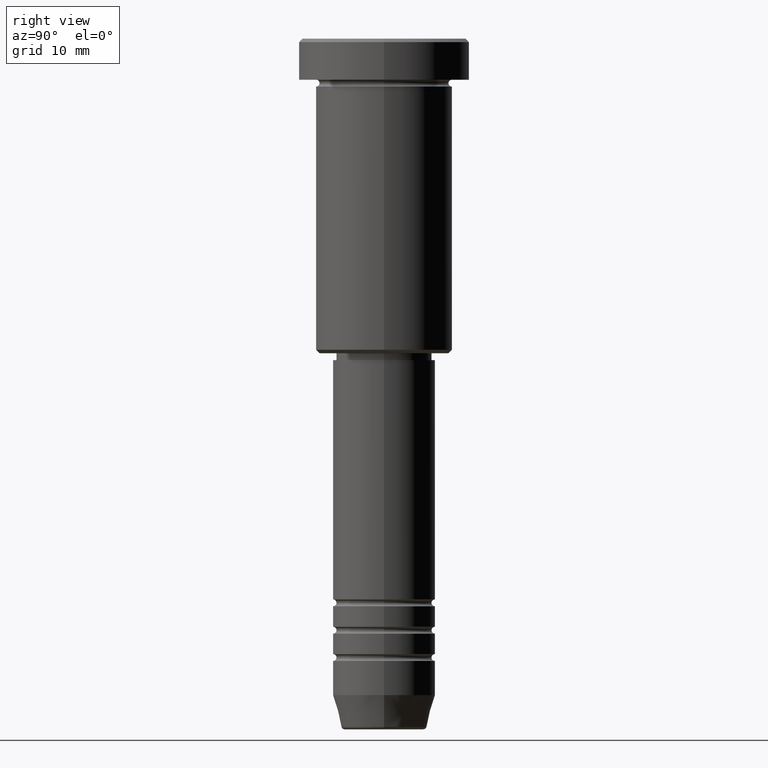
[diagram: clean part render]
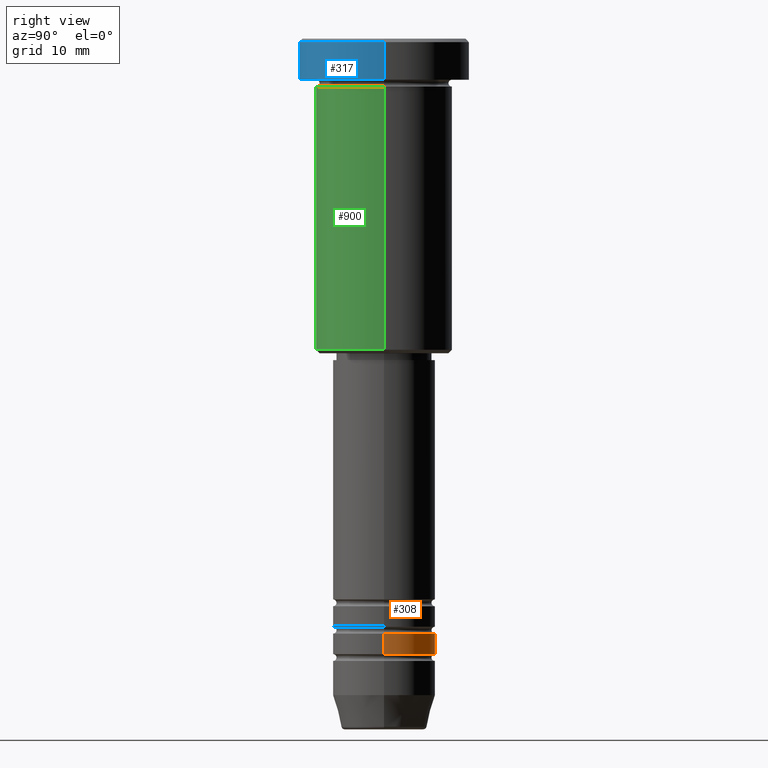
[diagram: same view with three faces highlighted in distinct colors, each labeled with its STEP entity id]
A machine part, right view with three faces highlighted in distinct colors.
Their STEP definitions:

[orange] entity #308 — the highlighted cylindrical surface (partial cylindrical patch) has radius 7.5 mm, axis along (-0, -0, 1).
#20 = VERTEX_POINT ( 'NONE', #613 ) ;
#71 = DIRECTION ( 'NONE',  ( -0.000000000000000000, -0.000000000000000000, 1.000000000000000000 ) ) ;
#140 = DIRECTION ( 'NONE',  ( -0.000000000000000000, -0.000000000000000000, 1.000000000000000000 ) ) ;
#211 = CARTESIAN_POINT ( 'NONE',  ( 7.500000000000000000, 0.000000000000000000, 0.000000000000000000 ) ) ;
#235 = LINE ( 'NONE', #211, #992 ) ;
#238 = EDGE_CURVE ( 'NONE', #20, #270, #235, .T. ) ;
#248 = EDGE_CURVE ( 'NONE', #20, #654, #1096, .T. ) ;
#270 = VERTEX_POINT ( 'NONE', #816 ) ;
#308 = ADVANCED_FACE ( 'NONE', ( #517 ), #802, .T. ) ;
#345 = LINE ( 'NONE', #906, #729 ) ;
#424 = ORIENTED_EDGE ( 'NONE', *, *, #1110, .T. ) ;
#433 = CARTESIAN_POINT ( 'NONE',  ( -7.500000000000001776, 9.184850993605149917E-16, -89.99999999999988631 ) ) ;
#440 = DIRECTION ( 'NONE',  ( -0.000000000000000000, -0.000000000000000000, 1.000000000000000000 ) ) ;
#511 = DIRECTION ( 'NONE',  ( 1.000000000000000000, 0.000000000000000000, 0.000000000000000000 ) ) ;
#517 = FACE_OUTER_BOUND ( 'NONE', #644, .T. ) ;
#530 = DIRECTION ( 'NONE',  ( 1.000000000000000000, 0.000000000000000000, 0.000000000000000000 ) ) ;
#604 = DIRECTION ( 'NONE',  ( -0.000000000000000000, -0.000000000000000000, 1.000000000000000000 ) ) ;
#612 = CIRCLE ( 'NONE', #653, 7.500000000000000000 ) ;
#613 = CARTESIAN_POINT ( 'NONE',  ( 7.500000000000000888, 0.000000000000000000, -89.99999999999988631 ) ) ;
#620 = DIRECTION ( 'NONE',  ( -0.000000000000000000, -0.000000000000000000, 1.000000000000000000 ) ) ;
#644 = EDGE_LOOP ( 'NONE', ( #1150, #424, #882, #840 ) ) ;
#653 = AXIS2_PLACEMENT_3D ( 'NONE', #994, #71, #1181 ) ;
#654 = VERTEX_POINT ( 'NONE', #433 ) ;
#729 = VECTOR ( 'NONE', #440, 1000.000000000000000 ) ;
#767 = AXIS2_PLACEMENT_3D ( 'NONE', #968, #140, #511 ) ;
#802 = CYLINDRICAL_SURFACE ( 'NONE', #898, 7.500000000000000000 ) ;
#816 = CARTESIAN_POINT ( 'NONE',  ( 7.500000000000000000, 0.000000000000000000, -86.99999999999988631 ) ) ;
#840 = ORIENTED_EDGE ( 'NONE', *, *, #238, .F. ) ;
#882 = ORIENTED_EDGE ( 'NONE', *, *, #1167, .F. ) ;
#898 = AXIS2_PLACEMENT_3D ( 'NONE', #1153, #620, #530 ) ;
#906 = CARTESIAN_POINT ( 'NONE',  ( -7.500000000000000000, 9.184850993605147944E-16, 0.000000000000000000 ) ) ;
#968 = CARTESIAN_POINT ( 'NONE',  ( 0.000000000000000000, 0.000000000000000000, -89.99999999999988631 ) ) ;
#983 = VERTEX_POINT ( 'NONE', #1148 ) ;
#992 = VECTOR ( 'NONE', #604, 1000.000000000000000 ) ;
#994 = CARTESIAN_POINT ( 'NONE',  ( 0.000000000000000000, 0.000000000000000000, -86.99999999999988631 ) ) ;
#1096 = CIRCLE ( 'NONE', #767, 7.500000000000000888 ) ;
#1110 = EDGE_CURVE ( 'NONE', #654, #983, #345, .T. ) ;
#1148 = CARTESIAN_POINT ( 'NONE',  ( -7.500000000000000000, 9.184850993605147944E-16, -86.99999999999988631 ) ) ;
#1150 = ORIENTED_EDGE ( 'NONE', *, *, #248, .T. ) ;
#1153 = CARTESIAN_POINT ( 'NONE',  ( 0.000000000000000000, 0.000000000000000000, 0.000000000000000000 ) ) ;
#1167 = EDGE_CURVE ( 'NONE', #270, #983, #612, .T. ) ;
#1181 = DIRECTION ( 'NONE',  ( 1.000000000000000000, 0.000000000000000000, 0.000000000000000000 ) ) ;

[blue] entity #317 — the highlighted cylindrical surface (partial cylindrical patch) has radius 12.5 mm, axis along (-0, -0, 1).
#2 = CARTESIAN_POINT ( 'NONE',  ( 0.000000000000000000, 0.000000000000000000, -5.999999999999996447 ) ) ;
#23 = DIRECTION ( 'NONE',  ( 1.000000000000000000, 0.000000000000000000, 0.000000000000000000 ) ) ;
#26 = VERTEX_POINT ( 'NONE', #977 ) ;
#104 = CARTESIAN_POINT ( 'NONE',  ( -12.50000000000000000, 1.530808498934191521E-15, 0.000000000000000000 ) ) ;
#132 = DIRECTION ( 'NONE',  ( 0.000000000000000000, 0.000000000000000000, -1.000000000000000000 ) ) ;
#153 = CYLINDRICAL_SURFACE ( 'NONE', #225, 12.50000000000000000 ) ;
#162 = CARTESIAN_POINT ( 'NONE',  ( 0.000000000000000000, 0.000000000000000000, 0.000000000000000000 ) ) ;
#164 = CARTESIAN_POINT ( 'NONE',  ( 12.50000000000000000, 0.000000000000000000, 0.000000000000000000 ) ) ;
#225 = AXIS2_PLACEMENT_3D ( 'NONE', #162, #350, #1070 ) ;
#228 = VERTEX_POINT ( 'NONE', #779 ) ;
#259 = AXIS2_PLACEMENT_3D ( 'NONE', #964, #132, #23 ) ;
#265 = VERTEX_POINT ( 'NONE', #427 ) ;
#317 = ADVANCED_FACE ( 'NONE', ( #981 ), #153, .T. ) ;
#350 = DIRECTION ( 'NONE',  ( -0.000000000000000000, -0.000000000000000000, 1.000000000000000000 ) ) ;
#380 = ORIENTED_EDGE ( 'NONE', *, *, #575, .F. ) ;
#381 = LINE ( 'NONE', #104, #639 ) ;
#391 = AXIS2_PLACEMENT_3D ( 'NONE', #2, #730, #446 ) ;
#427 = CARTESIAN_POINT ( 'NONE',  ( 12.50000000000000000, 0.000000000000000000, -5.999999999999996447 ) ) ;
#446 = DIRECTION ( 'NONE',  ( 1.000000000000000000, 0.000000000000000000, 0.000000000000000000 ) ) ;
#462 = ORIENTED_EDGE ( 'NONE', *, *, #1156, .T. ) ;
#575 = EDGE_CURVE ( 'NONE', #228, #1053, #381, .T. ) ;
#639 = VECTOR ( 'NONE', #1100, 1000.000000000000000 ) ;
#689 = EDGE_CURVE ( 'NONE', #265, #26, #720, .T. ) ;
#720 = LINE ( 'NONE', #164, #966 ) ;
#730 = DIRECTION ( 'NONE',  ( -0.000000000000000000, -0.000000000000000000, 1.000000000000000000 ) ) ;
#735 = ORIENTED_EDGE ( 'NONE', *, *, #689, .T. ) ;
#746 = CIRCLE ( 'NONE', #391, 12.50000000000000000 ) ;
#779 = CARTESIAN_POINT ( 'NONE',  ( -12.50000000000000000, 1.530808498934191521E-15, -5.999999999999996447 ) ) ;
#805 = EDGE_CURVE ( 'NONE', #26, #1053, #940, .T. ) ;
#857 = EDGE_LOOP ( 'NONE', ( #380, #462, #735, #903 ) ) ;
#903 = ORIENTED_EDGE ( 'NONE', *, *, #805, .T. ) ;
#940 = CIRCLE ( 'NONE', #259, 12.50000000000000000 ) ;
#964 = CARTESIAN_POINT ( 'NONE',  ( 0.000000000000000000, 0.000000000000000000, -0.5000000000000056621 ) ) ;
#966 = VECTOR ( 'NONE', #1066, 1000.000000000000000 ) ;
#977 = CARTESIAN_POINT ( 'NONE',  ( 12.50000000000000000, 0.000000000000000000, -0.5000000000000056621 ) ) ;
#981 = FACE_OUTER_BOUND ( 'NONE', #857, .T. ) ;
#1053 = VERTEX_POINT ( 'NONE', #1166 ) ;
#1066 = DIRECTION ( 'NONE',  ( -0.000000000000000000, -0.000000000000000000, 1.000000000000000000 ) ) ;
#1070 = DIRECTION ( 'NONE',  ( 1.000000000000000000, 0.000000000000000000, 0.000000000000000000 ) ) ;
#1100 = DIRECTION ( 'NONE',  ( -0.000000000000000000, -0.000000000000000000, 1.000000000000000000 ) ) ;
#1156 = EDGE_CURVE ( 'NONE', #228, #265, #746, .T. ) ;
#1166 = CARTESIAN_POINT ( 'NONE',  ( -12.50000000000000000, 1.530808498934191521E-15, -0.5000000000000056621 ) ) ;

[green] entity #900 — the highlighted cylindrical surface (partial cylindrical patch) has radius 10 mm, axis along (-0, -0, 1).
#56 = CARTESIAN_POINT ( 'NONE',  ( 10.00000000000000000, 0.000000000000000000, -45.49999999999997158 ) ) ;
#75 = AXIS2_PLACEMENT_3D ( 'NONE', #854, #677, #318 ) ;
#108 = FACE_OUTER_BOUND ( 'NONE', #560, .T. ) ;
#119 = ORIENTED_EDGE ( 'NONE', *, *, #1178, .F. ) ;
#122 = AXIS2_PLACEMENT_3D ( 'NONE', #647, #1002, #362 ) ;
#213 = VECTOR ( 'NONE', #1054, 1000.000000000000000 ) ;
#217 = LINE ( 'NONE', #507, #213 ) ;
#231 = EDGE_CURVE ( 'NONE', #924, #728, #454, .T. ) ;
#232 = CARTESIAN_POINT ( 'NONE',  ( 0.000000000000000000, 0.000000000000000000, 0.000000000000000000 ) ) ;
#249 = CARTESIAN_POINT ( 'NONE',  ( -10.00000000000000000, 1.224646799147353256E-15, -45.49999999999997158 ) ) ;
#303 = VECTOR ( 'NONE', #858, 1000.000000000000000 ) ;
#318 = DIRECTION ( 'NONE',  ( -1.000000000000000000, 0.000000000000000000, 0.000000000000000000 ) ) ;
#362 = DIRECTION ( 'NONE',  ( 1.000000000000000000, 0.000000000000000000, 0.000000000000000000 ) ) ;
#448 = AXIS2_PLACEMENT_3D ( 'NONE', #232, #601, #853 ) ;
#451 = ORIENTED_EDGE ( 'NONE', *, *, #785, .T. ) ;
#454 = CIRCLE ( 'NONE', #75, 10.00000000000000000 ) ;
#458 = VERTEX_POINT ( 'NONE', #671 ) ;
#493 = LINE ( 'NONE', #702, #303 ) ;
#507 = CARTESIAN_POINT ( 'NONE',  ( 10.00000000000000000, 0.000000000000000000, 0.000000000000000000 ) ) ;
#560 = EDGE_LOOP ( 'NONE', ( #1077, #659, #451, #119 ) ) ;
#572 = VERTEX_POINT ( 'NONE', #678 ) ;
#601 = DIRECTION ( 'NONE',  ( -0.000000000000000000, -0.000000000000000000, 1.000000000000000000 ) ) ;
#647 = CARTESIAN_POINT ( 'NONE',  ( 0.000000000000000000, 0.000000000000000000, -6.999999999999996447 ) ) ;
#659 = ORIENTED_EDGE ( 'NONE', *, *, #231, .T. ) ;
#671 = CARTESIAN_POINT ( 'NONE',  ( 10.00000000000000000, 0.000000000000000000, -6.999999999999996447 ) ) ;
#677 = DIRECTION ( 'NONE',  ( -0.000000000000000000, -0.000000000000000000, 1.000000000000000000 ) ) ;
#678 = CARTESIAN_POINT ( 'NONE',  ( -10.00000000000000000, 1.224646799147353256E-15, -6.999999999999996447 ) ) ;
#702 = CARTESIAN_POINT ( 'NONE',  ( -10.00000000000000000, 1.224646799147353256E-15, 0.000000000000000000 ) ) ;
#728 = VERTEX_POINT ( 'NONE', #56 ) ;
#761 = EDGE_CURVE ( 'NONE', #924, #572, #493, .T. ) ;
#785 = EDGE_CURVE ( 'NONE', #728, #458, #217, .T. ) ;
#791 = CYLINDRICAL_SURFACE ( 'NONE', #448, 10.00000000000000000 ) ;
#853 = DIRECTION ( 'NONE',  ( 1.000000000000000000, 0.000000000000000000, 0.000000000000000000 ) ) ;
#854 = CARTESIAN_POINT ( 'NONE',  ( 0.000000000000000000, 0.000000000000000000, -45.49999999999997158 ) ) ;
#858 = DIRECTION ( 'NONE',  ( -0.000000000000000000, -0.000000000000000000, 1.000000000000000000 ) ) ;
#900 = ADVANCED_FACE ( 'NONE', ( #108 ), #791, .T. ) ;
#924 = VERTEX_POINT ( 'NONE', #249 ) ;
#1002 = DIRECTION ( 'NONE',  ( -0.000000000000000000, -0.000000000000000000, 1.000000000000000000 ) ) ;
#1054 = DIRECTION ( 'NONE',  ( -0.000000000000000000, -0.000000000000000000, 1.000000000000000000 ) ) ;
#1077 = ORIENTED_EDGE ( 'NONE', *, *, #761, .F. ) ;
#1112 = CIRCLE ( 'NONE', #122, 10.00000000000000000 ) ;
#1178 = EDGE_CURVE ( 'NONE', #572, #458, #1112, .T. ) ;